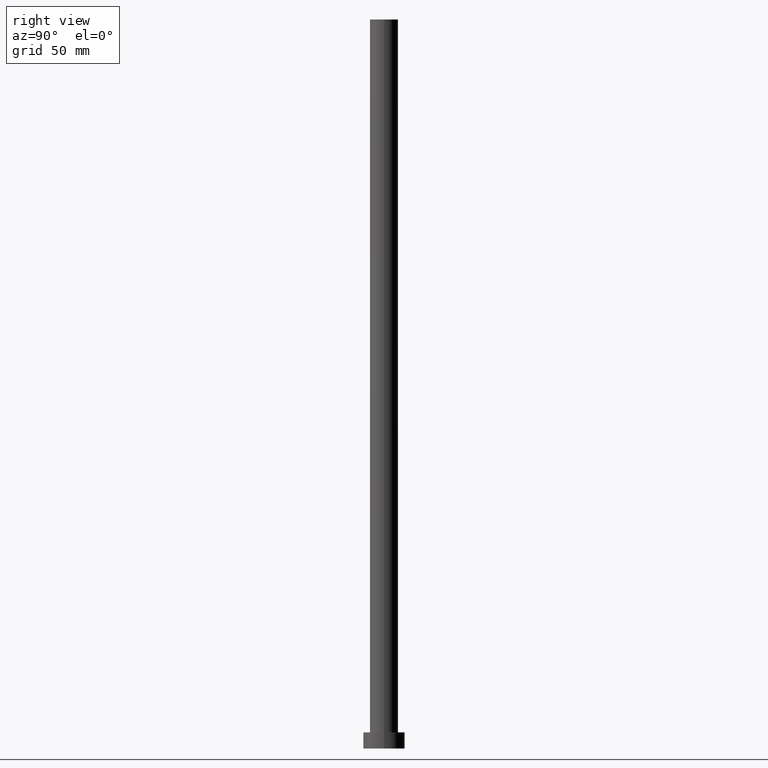
[diagram: clean part render]
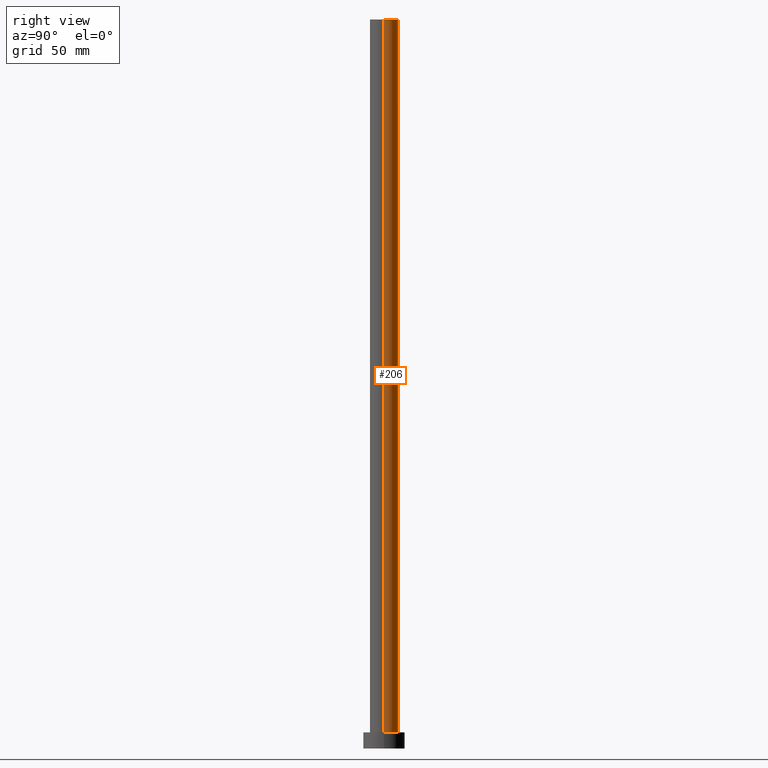
[diagram: same view with one face highlighted and labeled with its STEP entity id]
A machine part, right view. The second image highlights one B-rep face of the part: STEP entity #206.
In plain terms, the highlighted cylindrical surface (edge-blend (fillet) strip) has radius 6.1 mm, axis along (-0, -0, -1).
Its self-contained STEP definition (entity closure, byte-faithful):
#1 = AXIS2_PLACEMENT_3D ( 'NONE', #61, #118, #231 ) ;
#8 = VERTEX_POINT ( 'NONE', #78 ) ;
#10 = EDGE_CURVE ( 'NONE', #8, #110, #115, .T. ) ;
#12 = DIRECTION ( 'NONE',  ( -1.000000000000000000, 0.000000000000000000, 0.000000000000000000 ) ) ;
#22 = CIRCLE ( 'NONE', #137, 6.099999999999999645 ) ;
#27 = EDGE_CURVE ( 'NONE', #201, #110, #73, .T. ) ;
#33 = DIRECTION ( 'NONE',  ( 0.000000000000000000, 0.000000000000000000, 1.000000000000000000 ) ) ;
#34 = DIRECTION ( 'NONE',  ( -0.000000000000000000, -0.000000000000000000, -1.000000000000000000 ) ) ;
#55 = EDGE_CURVE ( 'NONE', #74, #201, #22, .T. ) ;
#61 = CARTESIAN_POINT ( 'NONE',  ( 0.000000000000000000, 0.000000000000000000, 7.000000000000000000 ) ) ;
#66 = DIRECTION ( 'NONE',  ( -0.000000000000000000, -0.000000000000000000, -1.000000000000000000 ) ) ;
#71 = ORIENTED_EDGE ( 'NONE', *, *, #193, .T. ) ;
#73 = LINE ( 'NONE', #134, #172 ) ;
#74 = VERTEX_POINT ( 'NONE', #113 ) ;
#78 = CARTESIAN_POINT ( 'NONE',  ( 6.099999999999999645, 7.470345474798854293E-16, 7.000000000000000000 ) ) ;
#84 = ORIENTED_EDGE ( 'NONE', *, *, #27, .F. ) ;
#95 = CARTESIAN_POINT ( 'NONE',  ( -6.099999999999999645, 0.000000000000000000, 7.000000000000000000 ) ) ;
#110 = VERTEX_POINT ( 'NONE', #95 ) ;
#113 = CARTESIAN_POINT ( 'NONE',  ( 6.099999999999999645, 7.470345474798854293E-16, 315.0000000000000000 ) ) ;
#115 = CIRCLE ( 'NONE', #1, 6.099999999999999645 ) ;
#116 = VECTOR ( 'NONE', #34, 1000.000000000000000 ) ;
#118 = DIRECTION ( 'NONE',  ( 0.000000000000000000, 0.000000000000000000, 1.000000000000000000 ) ) ;
#127 = LINE ( 'NONE', #252, #116 ) ;
#134 = CARTESIAN_POINT ( 'NONE',  ( -6.099999999999999645, 0.000000000000000000, 315.0000000000000000 ) ) ;
#137 = AXIS2_PLACEMENT_3D ( 'NONE', #213, #33, #251 ) ;
#140 = DIRECTION ( 'NONE',  ( -0.000000000000000000, -0.000000000000000000, -1.000000000000000000 ) ) ;
#169 = CYLINDRICAL_SURFACE ( 'NONE', #224, 6.099999999999999645 ) ;
#172 = VECTOR ( 'NONE', #140, 1000.000000000000000 ) ;
#176 = EDGE_LOOP ( 'NONE', ( #181, #71, #199, #84 ) ) ;
#181 = ORIENTED_EDGE ( 'NONE', *, *, #55, .F. ) ;
#193 = EDGE_CURVE ( 'NONE', #74, #8, #127, .T. ) ;
#199 = ORIENTED_EDGE ( 'NONE', *, *, #10, .T. ) ;
#201 = VERTEX_POINT ( 'NONE', #246 ) ;
#205 = FACE_OUTER_BOUND ( 'NONE', #176, .T. ) ;
#206 = ADVANCED_FACE ( 'NONE', ( #205 ), #169, .T. ) ;
#210 = CARTESIAN_POINT ( 'NONE',  ( 0.000000000000000000, 0.000000000000000000, 315.0000000000000000 ) ) ;
#213 = CARTESIAN_POINT ( 'NONE',  ( 0.000000000000000000, 0.000000000000000000, 315.0000000000000000 ) ) ;
#224 = AXIS2_PLACEMENT_3D ( 'NONE', #210, #66, #12 ) ;
#231 = DIRECTION ( 'NONE',  ( 1.000000000000000000, 0.000000000000000000, 0.000000000000000000 ) ) ;
#246 = CARTESIAN_POINT ( 'NONE',  ( -6.099999999999999645, 0.000000000000000000, 315.0000000000000000 ) ) ;
#251 = DIRECTION ( 'NONE',  ( 1.000000000000000000, 0.000000000000000000, 0.000000000000000000 ) ) ;
#252 = CARTESIAN_POINT ( 'NONE',  ( 6.099999999999999645, 7.470345474798854293E-16, 315.0000000000000000 ) ) ;